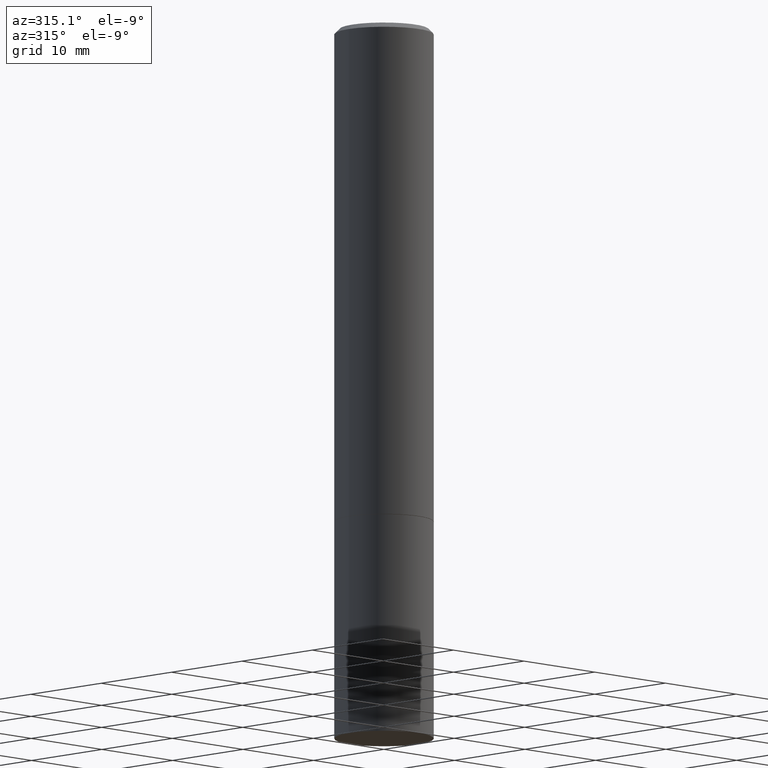
[diagram: clean part render]
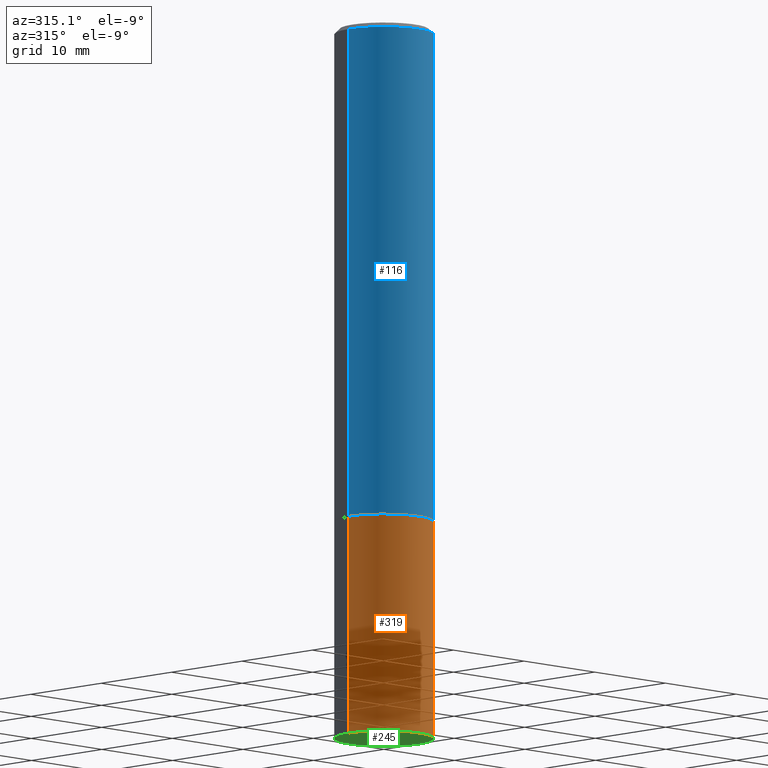
[diagram: same view with three faces highlighted in distinct colors, each labeled with its STEP entity id]
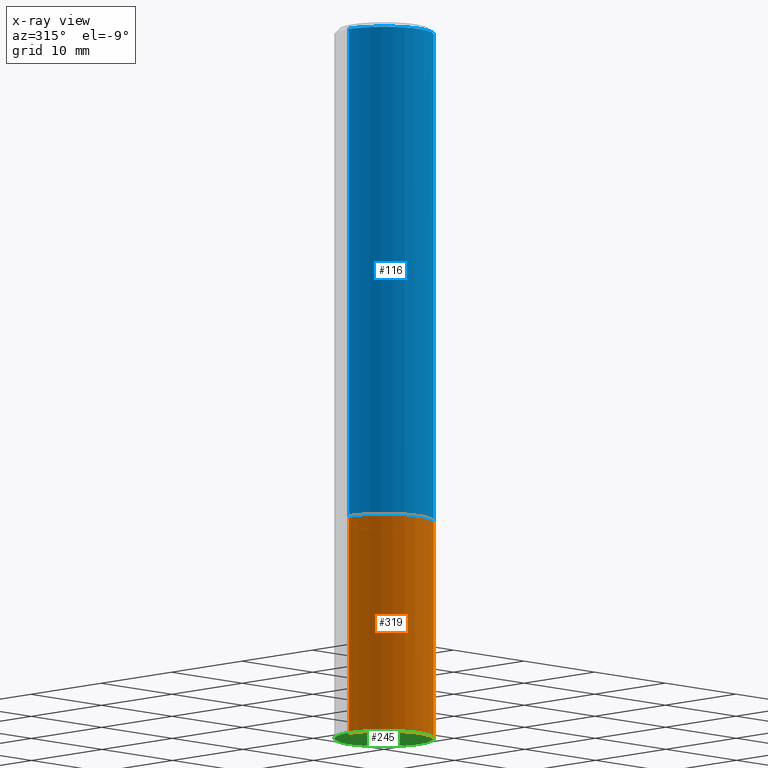
[diagram: x-ray of the same camera — body ghosted, the three highlighted faces saturated]
A machine part, auxiliary view with three faces highlighted in distinct colors.
The next image is the same camera in x-ray (body ghosted, the three faces saturated) — at least one of them is partly hidden behind the body in this view.
Their STEP definitions:

[orange] entity #319 — the highlighted cylindrical surface (partial cylindrical patch) has radius 5 mm, axis along (-0, 0, 1).
#13 = VERTEX_POINT ( 'NONE', #98 ) ;
#19 = ORIENTED_EDGE ( 'NONE', *, *, #362, .F. ) ;
#21 = CYLINDRICAL_SURFACE ( 'NONE', #240, 0.1968500000000000250 ) ;
#23 = DIRECTION ( 'NONE',  ( -2.445468806185136597E-29, 3.491481338843145583E-15, 1.000000000000000000 ) ) ;
#46 = DIRECTION ( 'NONE',  ( -2.445468806185136597E-29, 3.491481338843145583E-15, 1.000000000000000000 ) ) ;
#47 = CARTESIAN_POINT ( 'NONE',  ( -0.1968500000000000250, -6.986263633954999297E-15, -1.968500000000000139 ) ) ;
#51 = CIRCLE ( 'NONE', #250, 0.1968500000000000250 ) ;
#89 = CARTESIAN_POINT ( 'NONE',  ( -0.1968500000000000250, -6.986263633954999297E-15, -2.834600000000000009 ) ) ;
#98 = CARTESIAN_POINT ( 'NONE',  ( 0.1968500000000000250, -1.127154920618732249E-14, -2.834600000000000009 ) ) ;
#103 = CARTESIAN_POINT ( 'NONE',  ( 0.1968500000000000250, -8.247577218615273316E-15, -1.968500000000000139 ) ) ;
#112 = CARTESIAN_POINT ( 'NONE',  ( 0.1968500000000000250, -1.374596203102541608E-15, 9.598753983154300858E-30 ) ) ;
#113 = VERTEX_POINT ( 'NONE', #103 ) ;
#134 = CARTESIAN_POINT ( 'NONE',  ( 0.000000000000000000, 0.000000000000000000, 0.000000000000000000 ) ) ;
#136 = CARTESIAN_POINT ( 'NONE',  ( 6.931925878012387517E-29, -9.896953003084780885E-15, -2.834600000000000009 ) ) ;
#144 = DIRECTION ( 'NONE',  ( -2.445468806185136877E-29, 3.491481338843145188E-15, 1.000000000000000000 ) ) ;
#147 = AXIS2_PLACEMENT_3D ( 'NONE', #136, #46, #249 ) ;
#157 = DIRECTION ( 'NONE',  ( 1.000000000000000000, -6.982962677686267499E-15, 0.000000000000000000 ) ) ;
#174 = DIRECTION ( 'NONE',  ( -2.445468806185136877E-29, 3.491481338843145188E-15, 1.000000000000000000 ) ) ;
#191 = CARTESIAN_POINT ( 'NONE',  ( 4.813905344975441835E-29, -6.872981015512731707E-15, -1.968500000000000139 ) ) ;
#198 = LINE ( 'NONE', #112, #297 ) ;
#199 = LINE ( 'NONE', #315, #291 ) ;
#201 = EDGE_LOOP ( 'NONE', ( #19, #340, #316, #323 ) ) ;
#240 = AXIS2_PLACEMENT_3D ( 'NONE', #134, #23, #331 ) ;
#249 = DIRECTION ( 'NONE',  ( 1.000000000000000000, -6.982962677686267499E-15, 0.000000000000000000 ) ) ;
#250 = AXIS2_PLACEMENT_3D ( 'NONE', #191, #306, #157 ) ;
#291 = VECTOR ( 'NONE', #174, 39.37007874015748143 ) ;
#294 = VERTEX_POINT ( 'NONE', #47 ) ;
#297 = VECTOR ( 'NONE', #144, 39.37007874015748143 ) ;
#300 = EDGE_CURVE ( 'NONE', #294, #113, #51, .T. ) ;
#306 = DIRECTION ( 'NONE',  ( -2.445468806185136597E-29, 3.491481338843145583E-15, 1.000000000000000000 ) ) ;
#307 = FACE_OUTER_BOUND ( 'NONE', #201, .T. ) ;
#315 = CARTESIAN_POINT ( 'NONE',  ( -0.1968500000000000250, 1.398703375343757393E-15, -9.682923725166783677E-30 ) ) ;
#316 = ORIENTED_EDGE ( 'NONE', *, *, #359, .T. ) ;
#319 = ADVANCED_FACE ( 'NONE', ( #307 ), #21, .T. ) ;
#323 = ORIENTED_EDGE ( 'NONE', *, *, #300, .F. ) ;
#326 = EDGE_CURVE ( 'NONE', #345, #13, #328, .T. ) ;
#328 = CIRCLE ( 'NONE', #147, 0.1968500000000000250 ) ;
#331 = DIRECTION ( 'NONE',  ( 1.000000000000000000, -6.982962677686265922E-15, 4.876176775795935793E-29 ) ) ;
#340 = ORIENTED_EDGE ( 'NONE', *, *, #326, .T. ) ;
#345 = VERTEX_POINT ( 'NONE', #89 ) ;
#359 = EDGE_CURVE ( 'NONE', #13, #113, #198, .T. ) ;
#362 = EDGE_CURVE ( 'NONE', #345, #294, #199, .T. ) ;

[blue] entity #116 — the highlighted cylindrical surface (partial cylindrical patch) has radius 5 mm, axis along (-0, 0, 1).
#7 = AXIS2_PLACEMENT_3D ( 'NONE', #18, #243, #100 ) ;
#18 = CARTESIAN_POINT ( 'NONE',  ( 4.890937612370285420E-31, -6.982962677686308865E-17, -0.02000000000000005246 ) ) ;
#22 = CARTESIAN_POINT ( 'NONE',  ( -0.1968500000000000250, -2.070956205131617028E-15, -1.967500000000000027 ) ) ;
#26 = CARTESIAN_POINT ( 'NONE',  ( 0.1968499999999997474, -1.420318657638187347E-15, -0.02000000000000005246 ) ) ;
#28 = VERTEX_POINT ( 'NONE', #303 ) ;
#45 = CIRCLE ( 'NONE', #7, 0.1968499999999997474 ) ;
#52 = VECTOR ( 'NONE', #85, 39.37007874015748143 ) ;
#73 = DIRECTION ( 'NONE',  ( -2.445468806185136877E-29, 3.491481338843145188E-15, 1.000000000000000000 ) ) ;
#85 = DIRECTION ( 'NONE',  ( -2.445468806185136877E-29, 3.491481338843145188E-15, 1.000000000000000000 ) ) ;
#86 = ORIENTED_EDGE ( 'NONE', *, *, #252, .T. ) ;
#100 = DIRECTION ( 'NONE',  ( 1.000000000000000000, -6.982962677686266711E-15, 0.000000000000000000 ) ) ;
#116 = ADVANCED_FACE ( 'NONE', ( #347 ), #151, .T. ) ;
#120 = EDGE_LOOP ( 'NONE', ( #228, #86, #122, #230 ) ) ;
#122 = ORIENTED_EDGE ( 'NONE', *, *, #332, .T. ) ;
#129 = DIRECTION ( 'NONE',  ( -2.445468806185136597E-29, 3.491481338843145583E-15, 1.000000000000000000 ) ) ;
#138 = EDGE_CURVE ( 'NONE', #28, #236, #45, .T. ) ;
#149 = EDGE_CURVE ( 'NONE', #175, #28, #215, .T. ) ;
#151 = CYLINDRICAL_SURFACE ( 'NONE', #214, 0.1968499999999998862 ) ;
#175 = VERTEX_POINT ( 'NONE', #22 ) ;
#179 = CIRCLE ( 'NONE', #284, 0.1968500000000000250 ) ;
#212 = VERTEX_POINT ( 'NONE', #334 ) ;
#214 = AXIS2_PLACEMENT_3D ( 'NONE', #273, #129, #242 ) ;
#215 = LINE ( 'NONE', #305, #296 ) ;
#228 = ORIENTED_EDGE ( 'NONE', *, *, #149, .F. ) ;
#230 = ORIENTED_EDGE ( 'NONE', *, *, #138, .F. ) ;
#236 = VERTEX_POINT ( 'NONE', #26 ) ;
#242 = DIRECTION ( 'NONE',  ( 1.000000000000000000, -6.982962677686266711E-15, 4.876176775795935793E-29 ) ) ;
#243 = DIRECTION ( 'NONE',  ( -2.445468806185136597E-29, 3.491481338843145583E-15, 1.000000000000000000 ) ) ;
#248 = CARTESIAN_POINT ( 'NONE',  ( 4.811459876169256232E-29, -6.869489534173888700E-15, -1.967500000000000027 ) ) ;
#252 = EDGE_CURVE ( 'NONE', #175, #212, #179, .T. ) ;
#273 = CARTESIAN_POINT ( 'NONE',  ( 0.000000000000000000, 0.000000000000000000, 0.000000000000000000 ) ) ;
#281 = LINE ( 'NONE', #339, #52 ) ;
#284 = AXIS2_PLACEMENT_3D ( 'NONE', #248, #310, #309 ) ;
#296 = VECTOR ( 'NONE', #73, 39.37007874015748143 ) ;
#303 = CARTESIAN_POINT ( 'NONE',  ( -0.1968499999999997474, 1.304766576325676732E-15, -0.02000000000000005246 ) ) ;
#305 = CARTESIAN_POINT ( 'NONE',  ( -0.1968499999999998862, 1.398703375343756407E-15, -9.682923725166776671E-30 ) ) ;
#309 = DIRECTION ( 'NONE',  ( 1.000000000000000000, -6.982962677686267499E-15, 0.000000000000000000 ) ) ;
#310 = DIRECTION ( 'NONE',  ( -2.445468806185136597E-29, 3.491481338843145583E-15, 1.000000000000000000 ) ) ;
#332 = EDGE_CURVE ( 'NONE', #212, #236, #281, .T. ) ;
#334 = CARTESIAN_POINT ( 'NONE',  ( 0.1968500000000000250, -8.244085737276430308E-15, -1.967500000000000027 ) ) ;
#339 = CARTESIAN_POINT ( 'NONE',  ( 0.1968499999999998862, -1.374596203102540819E-15, 9.598753983154293852E-30 ) ) ;
#347 = FACE_OUTER_BOUND ( 'NONE', #120, .T. ) ;

[green] entity #245 — the highlighted planar face has unit normal (0, -0, -1).
#13 = VERTEX_POINT ( 'NONE', #98 ) ;
#41 = AXIS2_PLACEMENT_3D ( 'NONE', #160, #109, #194 ) ;
#46 = DIRECTION ( 'NONE',  ( -2.445468806185136597E-29, 3.491481338843145583E-15, 1.000000000000000000 ) ) ;
#89 = CARTESIAN_POINT ( 'NONE',  ( -0.1968500000000000250, -6.986263633954999297E-15, -2.834600000000000009 ) ) ;
#98 = CARTESIAN_POINT ( 'NONE',  ( 0.1968500000000000250, -1.127154920618732249E-14, -2.834600000000000009 ) ) ;
#105 = FACE_OUTER_BOUND ( 'NONE', #131, .T. ) ;
#109 = DIRECTION ( 'NONE',  ( -2.445468806185136597E-29, 3.491481338843145583E-15, 1.000000000000000000 ) ) ;
#131 = EDGE_LOOP ( 'NONE', ( #209, #289 ) ) ;
#133 = CIRCLE ( 'NONE', #41, 0.1968500000000000250 ) ;
#136 = CARTESIAN_POINT ( 'NONE',  ( 6.931925878012387517E-29, -9.896953003084780885E-15, -2.834600000000000009 ) ) ;
#147 = AXIS2_PLACEMENT_3D ( 'NONE', #136, #46, #249 ) ;
#160 = CARTESIAN_POINT ( 'NONE',  ( 6.931925878012387517E-29, -9.896953003084780885E-15, -2.834600000000000009 ) ) ;
#193 = DIRECTION ( 'NONE',  ( -1.000000000000000000, 6.982962677686265922E-15, -4.876176775795935793E-29 ) ) ;
#194 = DIRECTION ( 'NONE',  ( 1.000000000000000000, -6.982962677686267499E-15, 0.000000000000000000 ) ) ;
#209 = ORIENTED_EDGE ( 'NONE', *, *, #224, .F. ) ;
#224 = EDGE_CURVE ( 'NONE', #13, #345, #133, .T. ) ;
#225 = CARTESIAN_POINT ( 'NONE',  ( 1.374596203102610831E-15, 0.1968499999999901162, -2.834600000000000453 ) ) ;
#245 = ADVANCED_FACE ( 'NONE', ( #105 ), #335, .T. ) ;
#249 = DIRECTION ( 'NONE',  ( 1.000000000000000000, -6.982962677686267499E-15, 0.000000000000000000 ) ) ;
#289 = ORIENTED_EDGE ( 'NONE', *, *, #326, .F. ) ;
#312 = AXIS2_PLACEMENT_3D ( 'NONE', #225, #358, #193 ) ;
#326 = EDGE_CURVE ( 'NONE', #345, #13, #328, .T. ) ;
#328 = CIRCLE ( 'NONE', #147, 0.1968500000000000250 ) ;
#335 = PLANE ( 'NONE',  #312 ) ;
#345 = VERTEX_POINT ( 'NONE', #89 ) ;
#358 = DIRECTION ( 'NONE',  ( 2.438088387897960049E-29, -3.491481338843145188E-15, -1.000000000000000000 ) ) ;